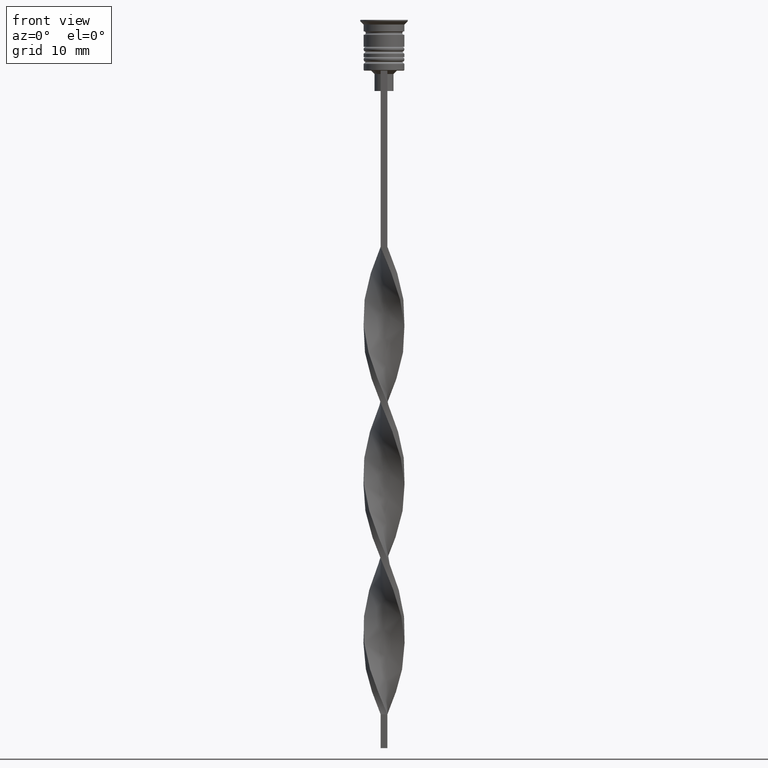
[diagram: clean part render]
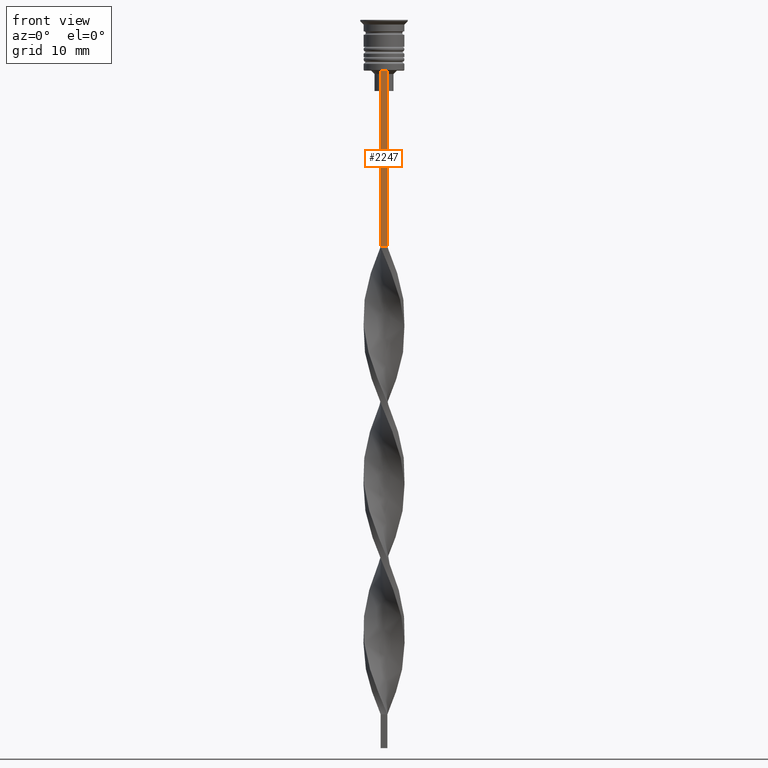
[diagram: same view with one face highlighted and labeled with its STEP entity id]
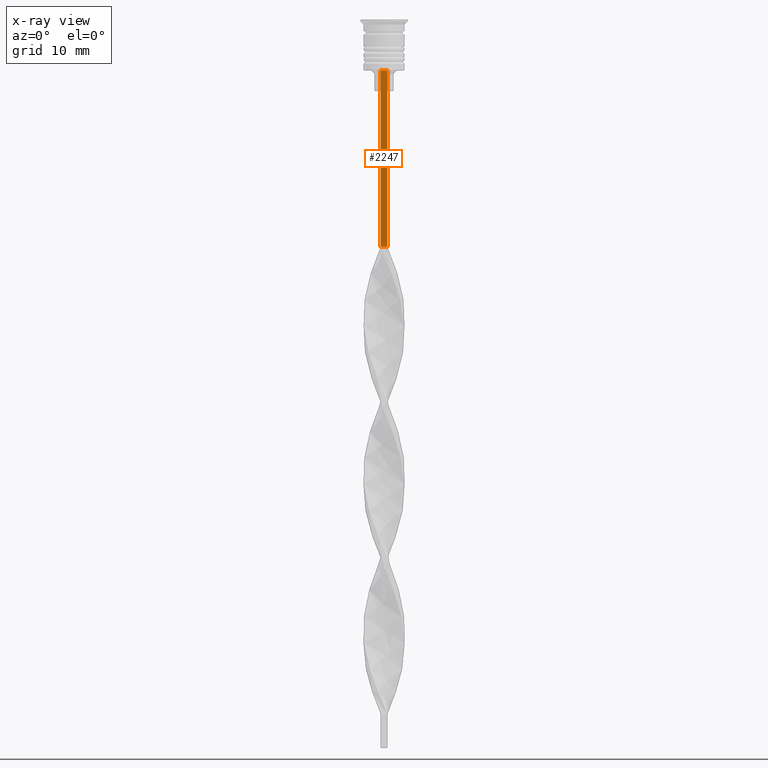
[diagram: x-ray of the same camera — body ghosted, the highlighted face saturated]
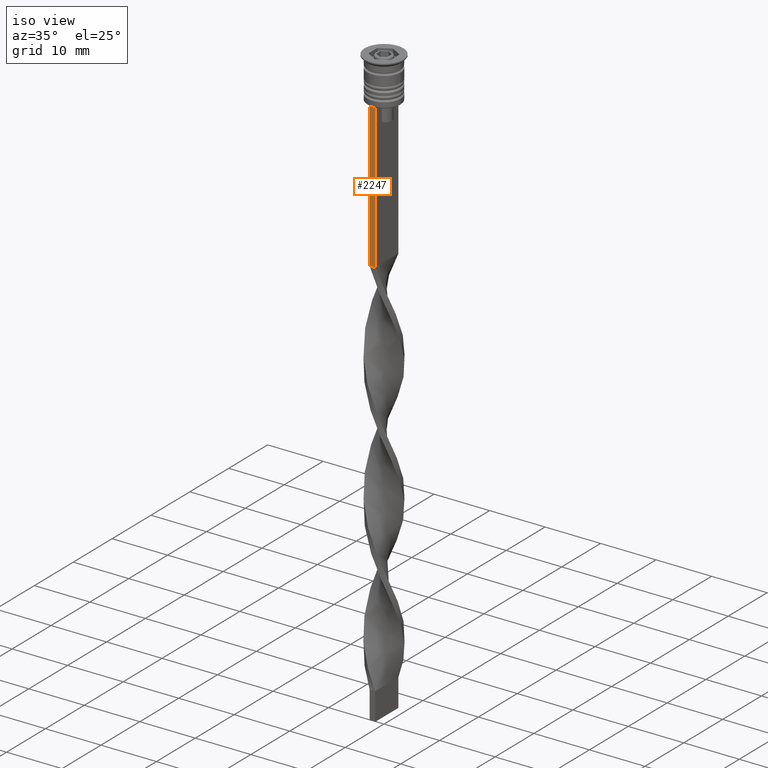
[diagram: same view with one face highlighted and labeled with its STEP entity id]
A machine part, front view. The second image highlights one B-rep face of the part: STEP entity #2247.
The next image is the same camera in x-ray: the body ghosted, the highlighted face saturated — about 0% of this face is hidden behind the body in this view.
A second angle (iso view) of the same face is appended — the face is thin or edge-on in the first view.
In plain terms, the highlighted planar face has unit normal (0, -1, -0).
Its self-contained STEP definition (entity closure, byte-faithful):
#18 = DIRECTION ( 'NONE',  ( -1.000000000000000000, 0.000000000000000000, 0.000000000000000000 ) ) ;
#22 = VERTEX_POINT ( 'NONE', #2972 ) ;
#73 = LINE ( 'NONE', #3298, #2839 ) ;
#150 = ORIENTED_EDGE ( 'NONE', *, *, #3186, .F. ) ;
#251 = EDGE_CURVE ( 'NONE', #998, #22, #73, .T. ) ;
#828 = CARTESIAN_POINT ( 'NONE',  ( 0.4999999999999998890, -3.000000000000000000, -33.50000000000000000 ) ) ;
#903 = DIRECTION ( 'NONE',  ( 0.000000000000000000, 0.000000000000000000, -1.000000000000000000 ) ) ;
#905 = DIRECTION ( 'NONE',  ( 0.000000000000000000, -1.000000000000000000, -0.000000000000000000 ) ) ;
#912 = LINE ( 'NONE', #1107, #1013 ) ;
#916 = VERTEX_POINT ( 'NONE', #2957 ) ;
#939 = EDGE_CURVE ( 'NONE', #990, #916, #3268, .T. ) ;
#942 = CARTESIAN_POINT ( 'NONE',  ( 0.4999999999999998890, -3.000000000000000000, -1.417237469701779329 ) ) ;
#990 = VERTEX_POINT ( 'NONE', #1103 ) ;
#998 = VERTEX_POINT ( 'NONE', #1380 ) ;
#1013 = VECTOR ( 'NONE', #1691, 1000.000000000000000 ) ;
#1103 = CARTESIAN_POINT ( 'NONE',  ( -0.5000000000000001110, -3.000000000000000000, -7.500000000000000000 ) ) ;
#1107 = CARTESIAN_POINT ( 'NONE',  ( 0.4999999999999998890, -3.000000000000000000, -7.500000000000000000 ) ) ;
#1352 = DIRECTION ( 'NONE',  ( 0.000000000000000000, 0.000000000000000000, -1.000000000000000000 ) ) ;
#1380 = CARTESIAN_POINT ( 'NONE',  ( 0.4999999999999998890, -3.000000000000000000, -7.500000000000000000 ) ) ;
#1691 = DIRECTION ( 'NONE',  ( 1.000000000000000000, 0.000000000000000000, 0.000000000000000000 ) ) ;
#1938 = EDGE_LOOP ( 'NONE', ( #2408, #3177, #150, #2443 ) ) ;
#1963 = FACE_OUTER_BOUND ( 'NONE', #1938, .T. ) ;
#2015 = DIRECTION ( 'NONE',  ( 0.000000000000000000, 0.000000000000000000, -1.000000000000000000 ) ) ;
#2247 = ADVANCED_FACE ( 'NONE', ( #1963 ), #3001, .T. ) ;
#2408 = ORIENTED_EDGE ( 'NONE', *, *, #2969, .F. ) ;
#2443 = ORIENTED_EDGE ( 'NONE', *, *, #251, .F. ) ;
#2569 = VECTOR ( 'NONE', #1352, 1000.000000000000000 ) ;
#2839 = VECTOR ( 'NONE', #903, 1000.000000000000000 ) ;
#2891 = LINE ( 'NONE', #828, #3011 ) ;
#2941 = CARTESIAN_POINT ( 'NONE',  ( -0.5000000000000001110, -3.000000000000000000, -1.417237469701779329 ) ) ;
#2957 = CARTESIAN_POINT ( 'NONE',  ( -0.5000000000000001110, -3.000000000000000000, -33.50000000000000000 ) ) ;
#2969 = EDGE_CURVE ( 'NONE', #990, #998, #912, .T. ) ;
#2972 = CARTESIAN_POINT ( 'NONE',  ( 0.4999999999999998890, -3.000000000000000000, -33.50000000000000000 ) ) ;
#3001 = PLANE ( 'NONE',  #3353 ) ;
#3011 = VECTOR ( 'NONE', #18, 1000.000000000000000 ) ;
#3177 = ORIENTED_EDGE ( 'NONE', *, *, #939, .T. ) ;
#3186 = EDGE_CURVE ( 'NONE', #22, #916, #2891, .T. ) ;
#3268 = LINE ( 'NONE', #2941, #2569 ) ;
#3298 = CARTESIAN_POINT ( 'NONE',  ( 0.4999999999999998890, -3.000000000000000000, -1.417237469701779329 ) ) ;
#3353 = AXIS2_PLACEMENT_3D ( 'NONE', #942, #905, #2015 ) ;